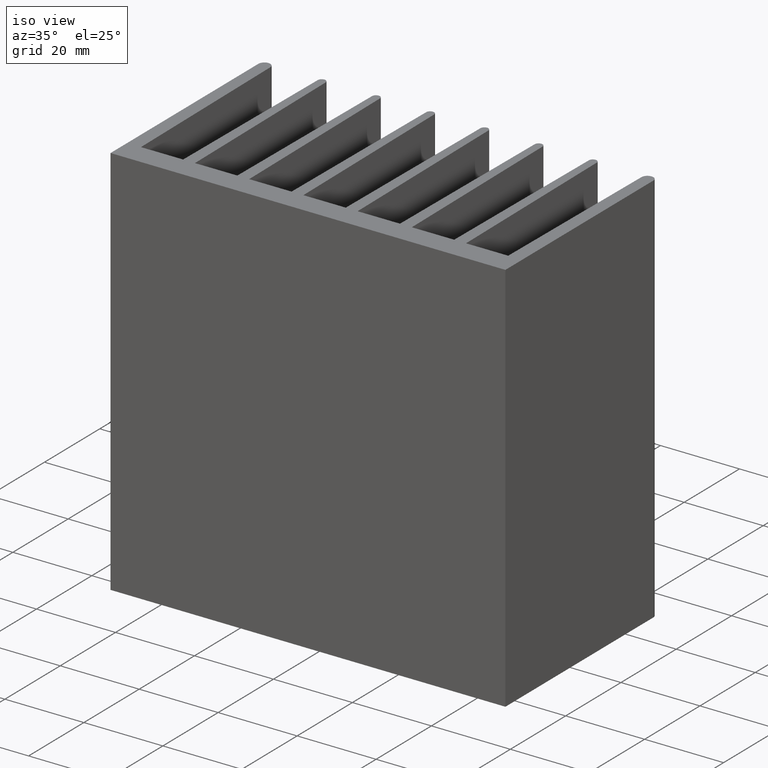
[diagram: clean part render]
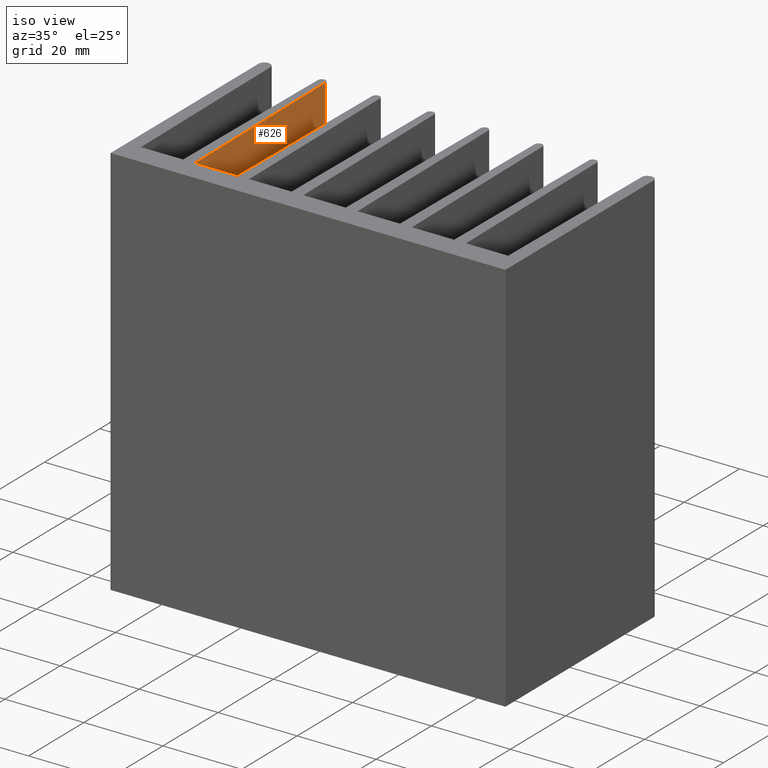
[diagram: same view with one face highlighted and labeled with its STEP entity id]
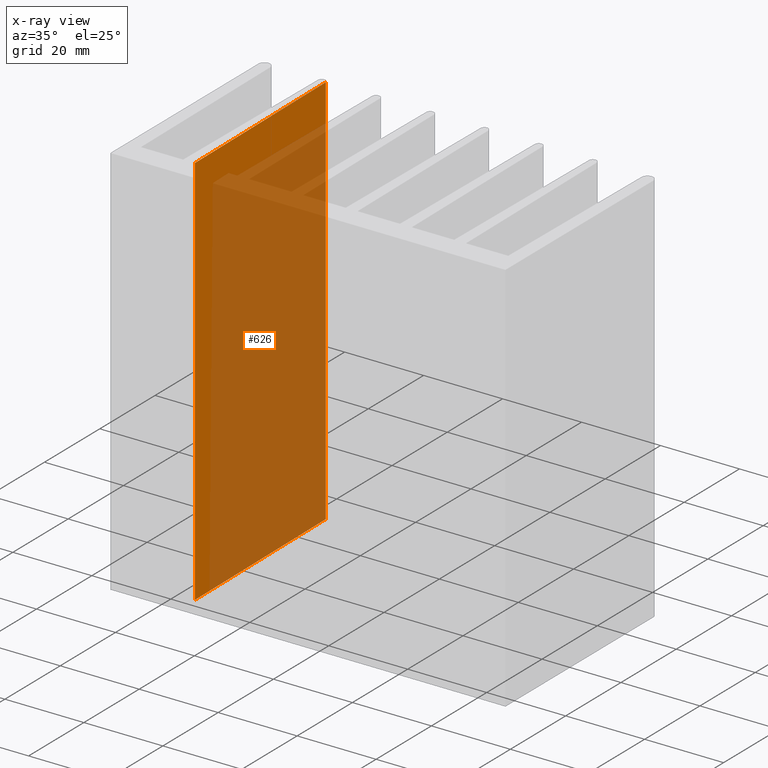
[diagram: x-ray of the same camera — body ghosted, the highlighted face saturated]
A machine part, iso view. The second image highlights one B-rep face of the part: STEP entity #626.
The next image is the same camera in x-ray: the body ghosted, the highlighted face saturated — about 80% of this face is hidden behind the body in this view.
In plain terms, the highlighted planar face has unit normal (-0.9999, -0.0104, 0).
Its self-contained STEP definition (entity closure, byte-faithful):
#62 = PLANE ( 'NONE',  #997 ) ;
#151 = VECTOR ( 'NONE', #984, 1000.000000000000000 ) ;
#177 = EDGE_CURVE ( 'NONE', #278, #692, #1139, .T. ) ;
#180 = CARTESIAN_POINT ( 'NONE',  ( -33.32505423728918004, 26.51041497175127404, 50.00000000000000000 ) ) ;
#210 = CARTESIAN_POINT ( 'NONE',  ( -32.82500000000010232, -21.50000000000013145, 50.00000000000000000 ) ) ;
#212 = CARTESIAN_POINT ( 'NONE',  ( -32.82500000000010232, -21.50000000000013145, -50.00000000000000000 ) ) ;
#217 = EDGE_CURVE ( 'NONE', #910, #692, #1076, .T. ) ;
#278 = VERTEX_POINT ( 'NONE', #305 ) ;
#293 = FACE_OUTER_BOUND ( 'NONE', #1110, .T. ) ;
#305 = CARTESIAN_POINT ( 'NONE',  ( -33.32505423728918004, 26.51041497175127404, 50.00000000000000000 ) ) ;
#397 = DIRECTION ( 'NONE',  ( -0.01041497175138009906, 0.9999457627108671032, 0.0000000000000000000 ) ) ;
#417 = DIRECTION ( 'NONE',  ( -0.01041497175138009906, 0.9999457627108671032, 0.0000000000000000000 ) ) ;
#428 = VECTOR ( 'NONE', #417, 1000.000000000000114 ) ;
#442 = LINE ( 'NONE', #210, #428 ) ;
#475 = CARTESIAN_POINT ( 'NONE',  ( -32.82500000000010232, -21.50000000000013145, 50.00000000000000000 ) ) ;
#479 = DIRECTION ( 'NONE',  ( -0.9999457627108672142, -0.01041497175138010080, 0.0000000000000000000 ) ) ;
#480 = DIRECTION ( 'NONE',  ( 0.01041497175138009906, -0.9999457627108671032, 0.0000000000000000000 ) ) ;
#500 = DIRECTION ( 'NONE',  ( -0.0000000000000000000, -0.0000000000000000000, -1.000000000000000000 ) ) ;
#515 = EDGE_CURVE ( 'NONE', #870, #278, #442, .T. ) ;
#552 = CARTESIAN_POINT ( 'NONE',  ( -33.32505423728918004, 26.51041497175127404, -50.00000000000000000 ) ) ;
#601 = ORIENTED_EDGE ( 'NONE', *, *, #177, .F. ) ;
#626 = ADVANCED_FACE ( 'NONE', ( #293 ), #62, .F. ) ;
#692 = VERTEX_POINT ( 'NONE', #552 ) ;
#697 = LINE ( 'NONE', #981, #151 ) ;
#864 = CARTESIAN_POINT ( 'NONE',  ( -32.82500000000010232, -21.50000000000013145, 50.00000000000000000 ) ) ;
#870 = VERTEX_POINT ( 'NONE', #864 ) ;
#882 = CARTESIAN_POINT ( 'NONE',  ( -32.82500000000010232, -21.50000000000013145, -50.00000000000000000 ) ) ;
#910 = VERTEX_POINT ( 'NONE', #882 ) ;
#970 = ORIENTED_EDGE ( 'NONE', *, *, #515, .F. ) ;
#981 = CARTESIAN_POINT ( 'NONE',  ( -32.82500000000010232, -21.50000000000013145, 50.00000000000000000 ) ) ;
#984 = DIRECTION ( 'NONE',  ( -0.0000000000000000000, -0.0000000000000000000, -1.000000000000000000 ) ) ;
#997 = AXIS2_PLACEMENT_3D ( 'NONE', #475, #479, #480 ) ;
#1002 = ORIENTED_EDGE ( 'NONE', *, *, #1088, .T. ) ;
#1014 = ORIENTED_EDGE ( 'NONE', *, *, #217, .T. ) ;
#1070 = VECTOR ( 'NONE', #397, 1000.000000000000114 ) ;
#1076 = LINE ( 'NONE', #212, #1070 ) ;
#1088 = EDGE_CURVE ( 'NONE', #870, #910, #697, .T. ) ;
#1110 = EDGE_LOOP ( 'NONE', ( #1014, #601, #970, #1002 ) ) ;
#1139 = LINE ( 'NONE', #180, #1162 ) ;
#1162 = VECTOR ( 'NONE', #500, 1000.000000000000000 ) ;